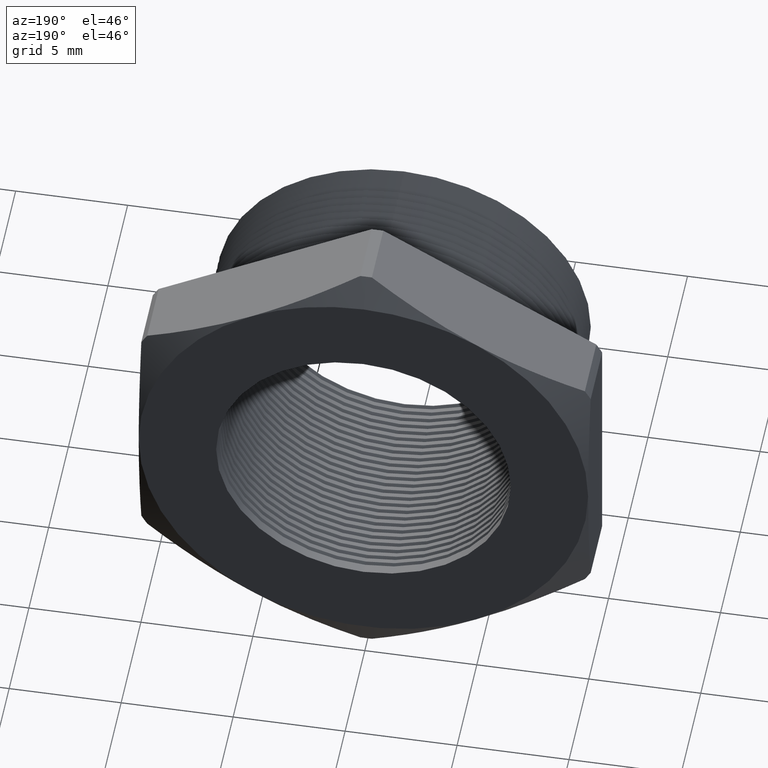
[diagram: clean part render]
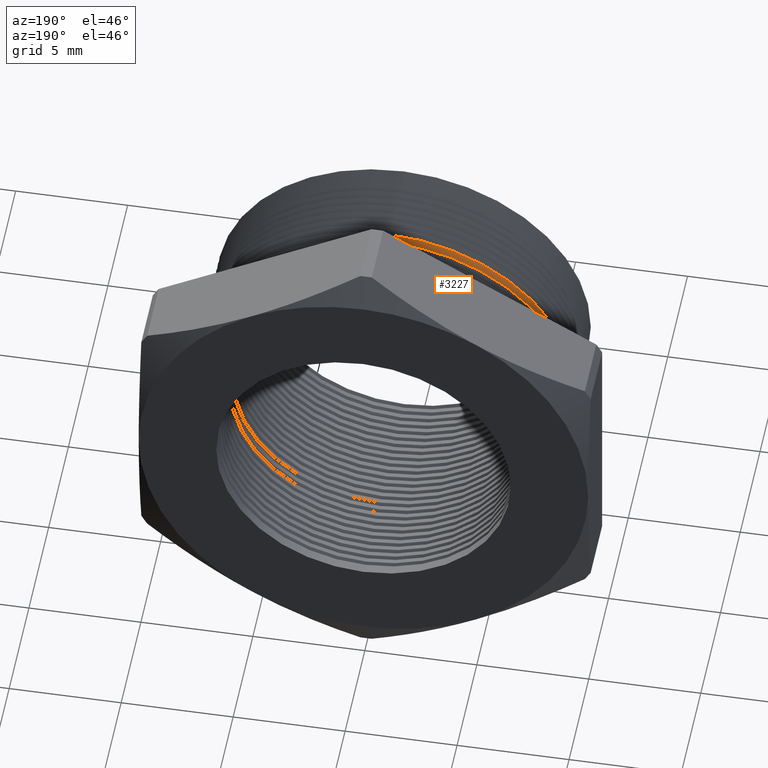
[diagram: same view with one face highlighted and labeled with its STEP entity id]
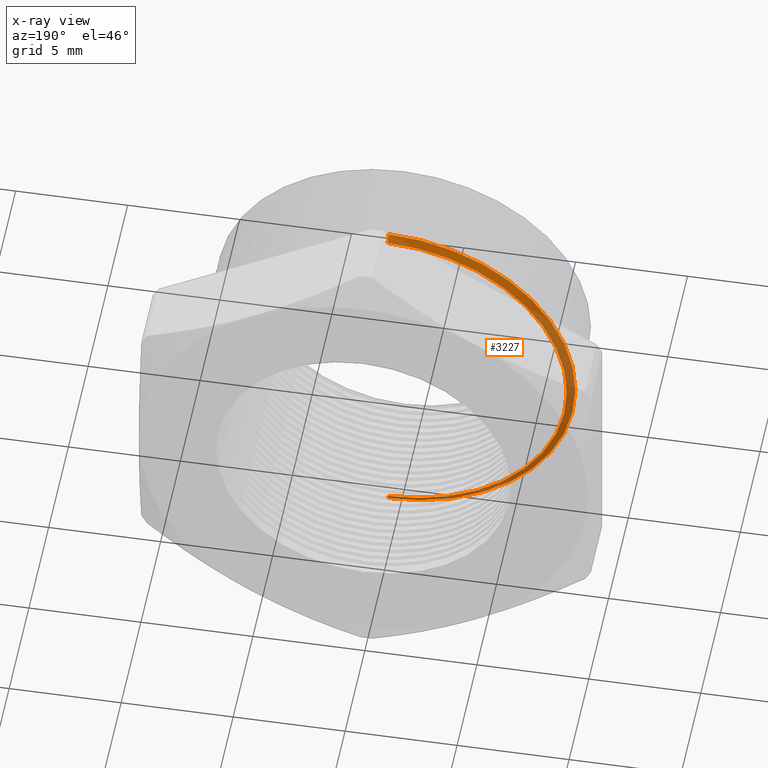
[diagram: x-ray of the same camera — body ghosted, the highlighted face saturated]
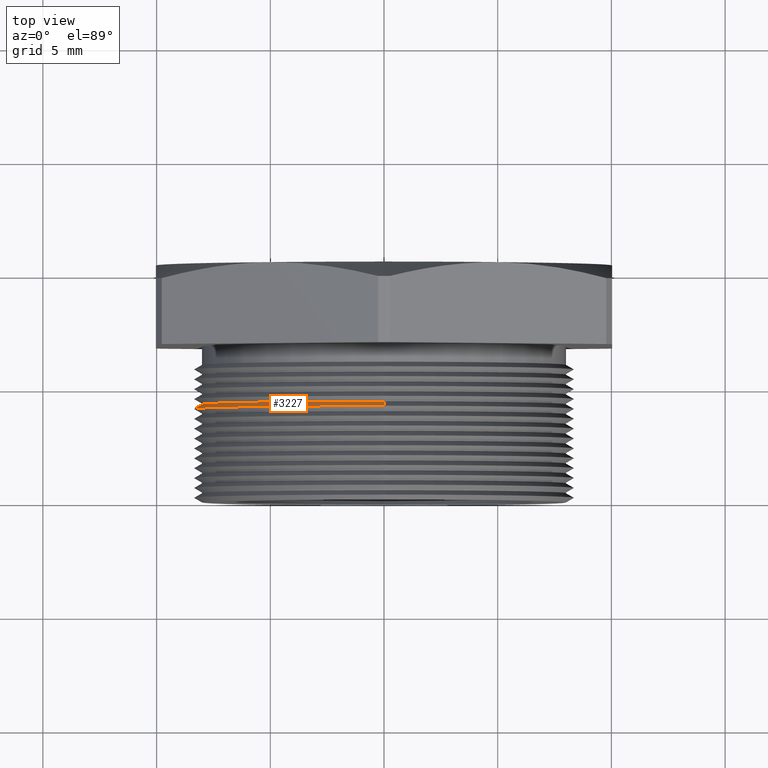
[diagram: same view with one face highlighted and labeled with its STEP entity id]
A machine part, auxiliary view. The second image highlights one B-rep face of the part: STEP entity #3227.
The next image is the same camera in x-ray: the body ghosted, the highlighted face saturated — about 52% of this face is hidden behind the body in this view.
A second angle (top view) of the same face is appended — the face is thin or edge-on in the first view.
In plain terms, the highlighted conical surface has half-angle 60 deg.
Its self-contained STEP definition (entity closure, byte-faithful):
#1373 = CARTESIAN_POINT ( 'NONE',  ( 0.0000000000000000000, 0.1591548905829480200, -0.3287738815610546400 ) ) ;
#1382 = CARTESIAN_POINT ( 'NONE',  ( 4.026318816969966200E-017, 0.1591548905829480200, 0.3287738815610546400 ) ) ;
#1475 = CARTESIAN_POINT ( 'NONE',  ( 0.0000000000000000000, 0.1671072448100089100, 0.0000000000000000000 ) ) ;
#1534 = DIRECTION ( 'NONE',  ( 0.0000000000000000000, 0.0000000000000000000, -1.000000000000000000 ) ) ;
#1535 = DIRECTION ( 'NONE',  ( 0.0000000000000000000, -1.000000000000000000, 0.0000000000000000000 ) ) ;
#1536 = AXIS2_PLACEMENT_3D ( 'NONE', #1475, #1535, #1534 ) ;
#1537 = CIRCLE ( 'NONE', #1536, 0.3150000000000000000 ) ;
#1675 = CARTESIAN_POINT ( 'NONE',  ( 3.857637417314162700E-017, 0.1671072448100089100, 0.3150000000000000000 ) ) ;
#1676 = CARTESIAN_POINT ( 'NONE',  ( 0.0000000000000000000, 0.1671072448100089100, -0.3150000000000000000 ) ) ;
#1725 = DIRECTION ( 'NONE',  ( 0.0000000000000000000, -0.4999999999999991100, -0.8660254037844391500 ) ) ;
#1726 = VECTOR ( 'NONE', #1725, 39.37007874015748100 ) ;
#1727 = CARTESIAN_POINT ( 'NONE',  ( 0.0000000000000000000, 0.1671072448100089100, -0.3150000000000000000 ) ) ;
#1728 = LINE ( 'NONE', #1727, #1726 ) ;
#1729 = DIRECTION ( 'NONE',  ( 1.060575238724907500E-016, -0.4999999999999991100, 0.8660254037844391500 ) ) ;
#1730 = VECTOR ( 'NONE', #1729, 39.37007874015748100 ) ;
#1731 = CARTESIAN_POINT ( 'NONE',  ( 3.857637417314162700E-017, 0.1671072448100089100, 0.3150000000000000000 ) ) ;
#1732 = LINE ( 'NONE', #1731, #1730 ) ;
#3227 = ADVANCED_FACE ( 'NONE', ( #6405 ), #6400, .T. ) ;
#3228 = EDGE_LOOP ( 'NONE', ( #3230, #3232, #3266, #3261 ) ) ;
#3230 = ORIENTED_EDGE ( 'NONE', *, *, #4077, .F. ) ;
#3232 = ORIENTED_EDGE ( 'NONE', *, *, #3711, .T. ) ;
#3258 = EDGE_CURVE ( 'NONE', #3661, #3654, #6428, .T. ) ;
#3261 = ORIENTED_EDGE ( 'NONE', *, *, #3258, .T. ) ;
#3266 = ORIENTED_EDGE ( 'NONE', *, *, #4140, .T. ) ;
#3654 = VERTEX_POINT ( 'NONE', #1382 ) ;
#3661 = VERTEX_POINT ( 'NONE', #1373 ) ;
#3711 = EDGE_CURVE ( 'NONE', #4005, #3994, #1537, .T. ) ;
#3994 = VERTEX_POINT ( 'NONE', #1676 ) ;
#4005 = VERTEX_POINT ( 'NONE', #1675 ) ;
#4077 = EDGE_CURVE ( 'NONE', #4005, #3654, #1732, .T. ) ;
#4140 = EDGE_CURVE ( 'NONE', #3994, #3661, #1728, .T. ) ;
#6395 = DIRECTION ( 'NONE',  ( 0.0000000000000000000, 0.0000000000000000000, -1.000000000000000000 ) ) ;
#6396 = DIRECTION ( 'NONE',  ( 0.0000000000000000000, -1.000000000000000000, 0.0000000000000000000 ) ) ;
#6397 = CARTESIAN_POINT ( 'NONE',  ( 0.0000000000000000000, 0.1671072448100089100, 0.0000000000000000000 ) ) ;
#6398 = AXIS2_PLACEMENT_3D ( 'NONE', #6397, #6396, #6395 ) ;
#6400 = CONICAL_SURFACE ( 'NONE', #6398, 0.3150000000000000000, 1.047197551196598700 ) ;
#6405 = FACE_OUTER_BOUND ( 'NONE', #3228, .T. ) ;
#6419 = DIRECTION ( 'NONE',  ( 0.0000000000000000000, 0.0000000000000000000, 1.000000000000000000 ) ) ;
#6420 = DIRECTION ( 'NONE',  ( -0.0000000000000000000, 1.000000000000000000, -0.0000000000000000000 ) ) ;
#6421 = CARTESIAN_POINT ( 'NONE',  ( 0.0000000000000000000, 0.1591548905829480200, 0.0000000000000000000 ) ) ;
#6422 = AXIS2_PLACEMENT_3D ( 'NONE', #6421, #6420, #6419 ) ;
#6428 = CIRCLE ( 'NONE', #6422, 0.3287738815610546400 ) ;